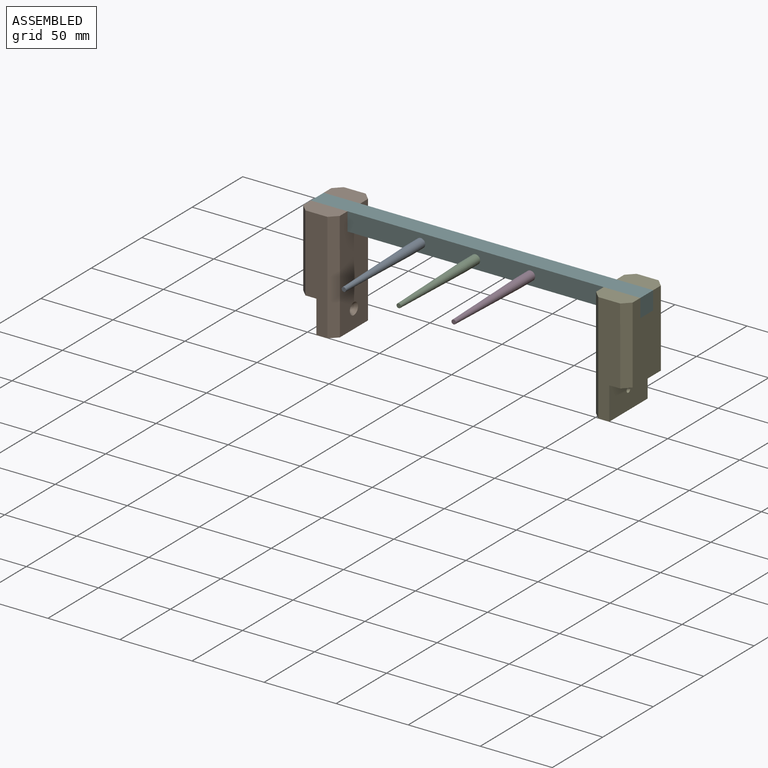
[diagram: assembled view]
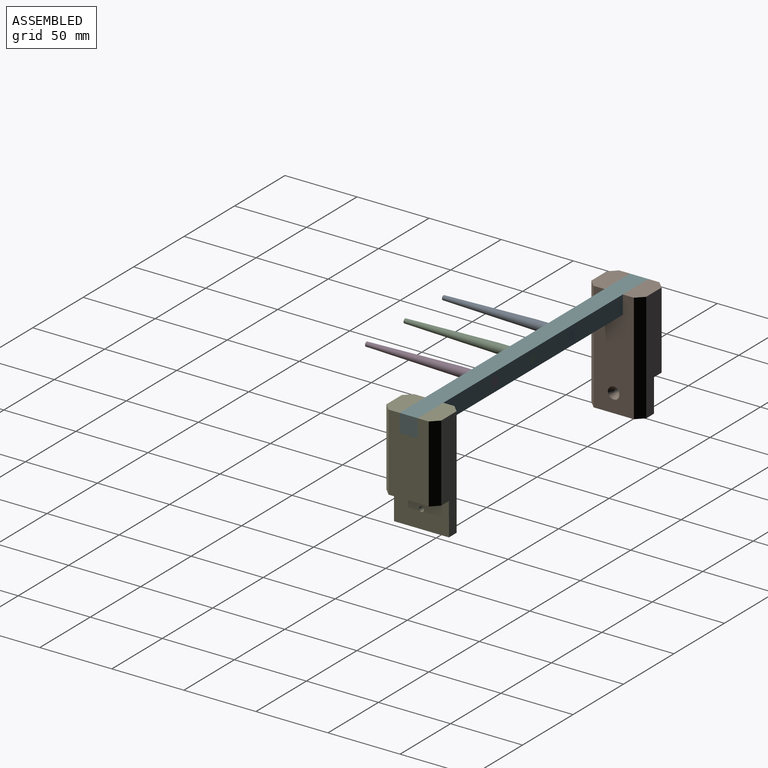
[diagram: assembled view, second angle]
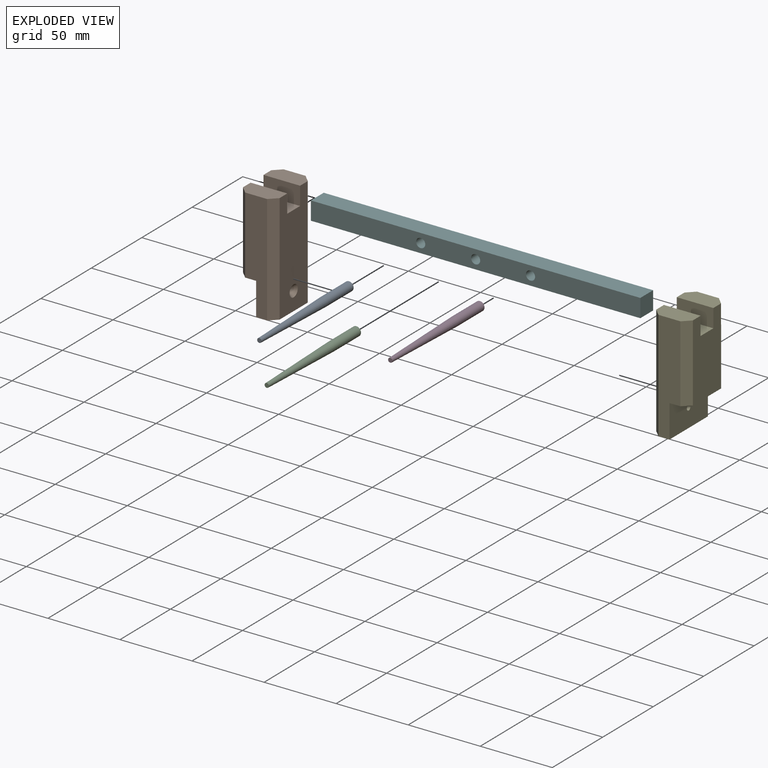
[diagram: exploded view]
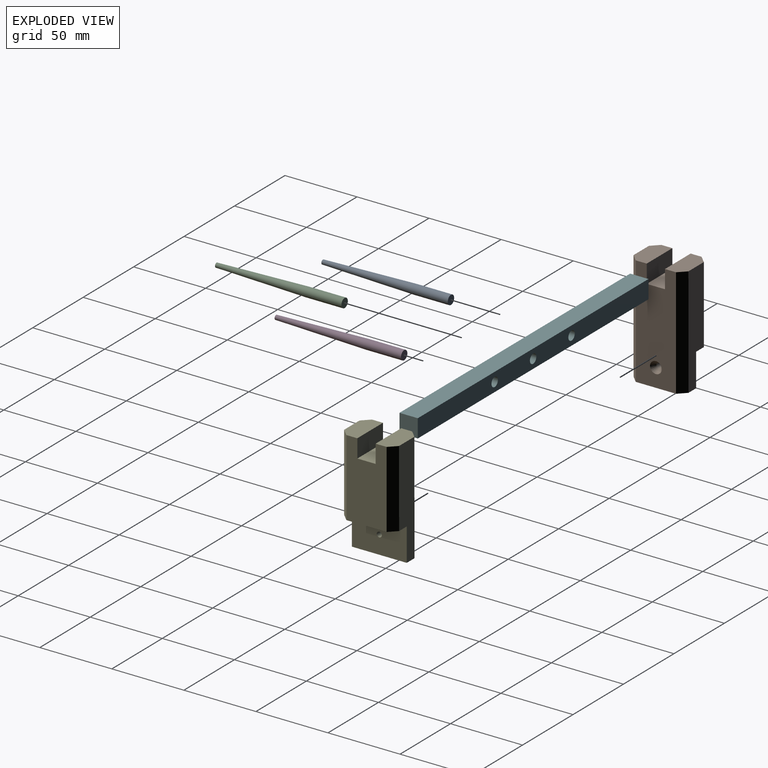
[diagram: exploded view, second angle]
ASSEMBLY  parts=6 mates=12
PART A: 4 faces, bbox 6.4x6.4x88.9 mm
  f0: cone r=3.17mm half-angle=1.5deg, axis (0,0,-1), area 935.4mm2, adj f1,f2
  f1: plane 3.02x3.02mm, normal (0,0,1), area 7.2mm2, adj f0
  f2: cylinder r=3.17mm len=25.4mm, axis (0,0,1), area 506.7mm2, adj f0,f3
  f3: plane 6.35x6.35mm, normal (0,0,-1), area 31.7mm2, adj f2
PART B: 18 faces, bbox 25.4x38.1x76.2 mm
  f0: plane 76.2x15.24mm, normal (0,-1,0), area 987.1mm2, adj f3,f6,f8,f10,f14,f15
  f1: plane 76.2x15.24mm, normal (0,1,0), area 987.1mm2, adj f2,f4,f6,f9,f14,f15
  f2: plane 53.34x5.08mm, normal (0.71,0.71,0), area 383.2mm2, adj f1,f4,f7,f15
  f3: plane 53.34x5.08mm, normal (0.71,-0.71,0), area 383.2mm2, adj f0,f7,f8,f15
  f4: plane 25.4x12.7mm, normal (0,0,1), area 296.8mm2, adj f1,f2,f5,f7,f9,f13
  f5: plane 76.2x27.94mm, normal (-1,0,0), area 1915.9mm2, adj f4,f6,f8,f9,f10,f11,f12,f13
  f6: plane 38.1x12.7mm, normal (0,0,-1), area 458.1mm2, adj f0,f1,f5,f9,f10,f14
  f7: plane 53.34x27.94mm, normal (1,0,0), area 1329mm2, adj f2,f3,f4,f8,f11,f12,f13,f15
  f8: plane 25.4x12.7mm, normal (0,0,1), area 296.8mm2, adj f0,f3,f5,f7,f10,f11
  f9: plane 76.2x5.08mm, normal (-0.71,0.71,0), area 547.4mm2, adj f1,f4,f5,f6
  f10: plane 76.2x5.08mm, normal (-0.71,-0.71,0), area 547.4mm2, adj f0,f5,f6,f8
  f11: plane 25.4x12.7mm, normal (0,1,0), area 322.6mm2, adj f5,f7,f8,f12
  f12: plane 25.4x12.7mm, normal (0,0,1), area 322.6mm2, adj f5,f7,f11,f13
  f13: plane 25.4x12.7mm, normal (0,-1,0), area 322.6mm2, adj f4,f5,f7,f12
  f14: plane 38.1x22.86mm, normal (1,0,0), area 861mm2, adj f0,f1,f6,f15,f16
  f15: plane 38.1x12.7mm, normal (0,0,-1), area 458.1mm2, adj f0,f1,f2,f3,f7,f14
  f16: cylinder r=1.78mm len=9.72mm, axis (-1,0,0), area 108.6mm2, adj f14,f17
  f17: cone r=1.78mm half-angle=37.5deg, axis (-1,0,0), area 68.9mm2, adj f5,f16
PART C: same geometry as A
PART D: same geometry as A
PART E: same geometry as B
PART F: 9 faces, bbox 228.6x12.7x12.7 mm
  f0: plane 228.6x12.7mm, normal (0,0,-1), area 2903.2mm2, adj f1,f6,f7,f8
  f1: plane 12.7x12.7mm, normal (1,0,0), area 161.3mm2, adj f0,f2,f7,f8
  f2: plane 228.6x12.7mm, normal (0,0,1), area 2903.2mm2, adj f1,f6,f7,f8
  f3: cylinder r=3.17mm len=12.7mm, axis (0,-1,0), area 253.4mm2, adj f7,f8
  f4: cylinder r=3.17mm len=12.7mm, axis (0,-1,0), area 253.4mm2, adj f7,f8
  f5: cylinder r=3.17mm len=12.7mm, axis (0,-1,0), area 253.4mm2, adj f7,f8
  f6: plane 12.7x12.7mm, normal (-1,0,0), area 161.3mm2, adj f0,f2,f7,f8
  f7: plane 228.6x12.7mm, normal (0,1,0), area 2808.2mm2, adj f0,f1,f2,f3,f4,f5,f6
  f8: plane 228.6x12.7mm, normal (0,-1,0), area 2808.2mm2, adj f0,f1,f2,f3,f4,f5,f6
PLACE A rot(axis=(1,0,0),90deg) t=(-146.17,1.26,344.29)mm
PLACE B rot(axis=(0,0,-1),180deg) t=(-222.37,39.39,274.45)mm
PLACE C rot(axis=(1,0,0),90deg) t=(-108.07,1.26,344.29)mm
PLACE D rot(axis=(1,0,0),90deg) t=(-69.97,1.26,344.29)mm
PLACE E rot(axis=(1,0,0),0deg) t=(6.23,1.29,274.44)mm
PLACE F rot(axis=(1,0,0),0deg) t=(6.23,13.97,337.94)mm
MATE cylindrical C.f0 <-> F.f4  axis (0,1,0) through (-108.07,26.66,344.3)mm
MATE planar F.f4 <-> C.f0  axis (0,1,0) through (-108.07,26.66,344.3)mm
MATE planar B.f12 <-> F.f0  axis (0,0,1) through (-196.97,26.67,337.95)mm
MATE planar F.f4 <-> E.f11  axis (0,-1,0) through (-108.07,13.96,344.29)mm
MATE cylindrical D.f0 <-> F.f5  axis (0,1,0) through (-69.97,26.66,344.3)mm
MATE planar F.f4 <-> D.f0  axis (0,1,0) through (-108.07,26.66,344.3)mm
MATE planar B.f7 <-> F.f6  axis (-1,0,0) through (-222.37,26.67,337.95)mm
MATE planar F.f4 <-> B.f13  axis (0,-1,0) through (-108.07,13.96,344.29)mm
MATE planar F.f4 <-> A.f0  axis (0,1,0) through (-108.07,26.66,344.3)mm
MATE planar E.f12 <-> F.f0  axis (0,0,1) through (-6.47,20.32,337.95)mm
MATE planar E.f7 <-> F.f1  axis (1,0,0) through (6.23,34.3,297.31)mm
MATE cylindrical A.f0 <-> F.f3  axis (0,1,0) through (-146.17,26.66,344.3)mm
